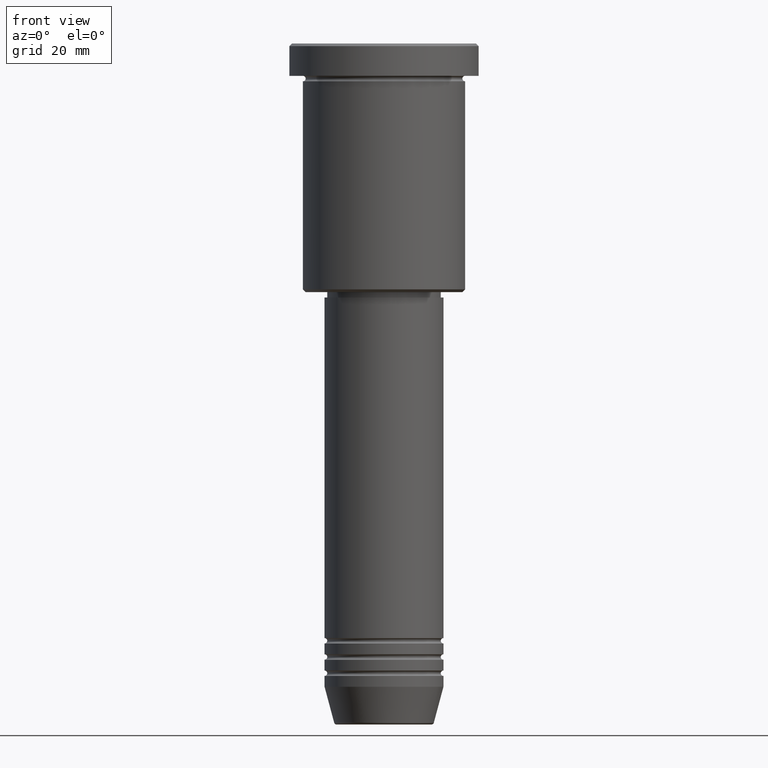
[diagram: clean part render]
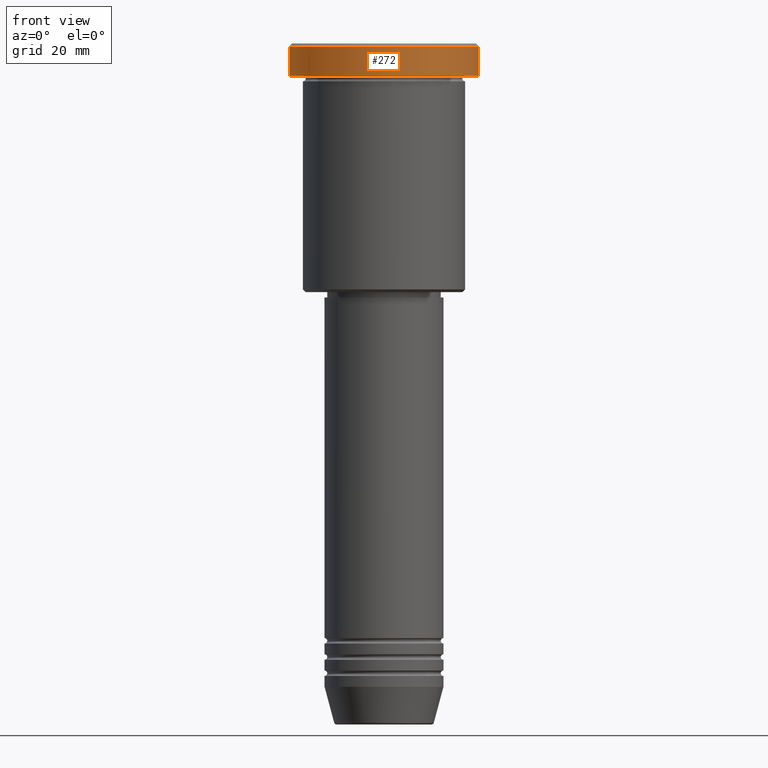
[diagram: same view with one face highlighted and labeled with its STEP entity id]
A machine part, front view. The second image highlights one B-rep face of the part: STEP entity #272.
In plain terms, the highlighted cylindrical surface (partial cylindrical patch) has radius 17.5 mm, axis along (-0, -0, 1).
Its self-contained STEP definition (entity closure, byte-faithful):
#66 = DIRECTION ( 'NONE',  ( 0.000000000000000000, 0.000000000000000000, -1.000000000000000000 ) ) ;
#82 = AXIS2_PLACEMENT_3D ( 'NONE', #518, #462, #467 ) ;
#116 = CARTESIAN_POINT ( 'NONE',  ( -17.50000000000000000, 2.143131898507868248E-15, -0.4999999999999864553 ) ) ;
#144 = ORIENTED_EDGE ( 'NONE', *, *, #997, .T. ) ;
#169 = ORIENTED_EDGE ( 'NONE', *, *, #241, .T. ) ;
#193 = DIRECTION ( 'NONE',  ( -0.000000000000000000, -0.000000000000000000, 1.000000000000000000 ) ) ;
#203 = FACE_OUTER_BOUND ( 'NONE', #649, .T. ) ;
#214 = CARTESIAN_POINT ( 'NONE',  ( -17.50000000000000000, 2.143131898507868248E-15, -5.999999999999995559 ) ) ;
#236 = CIRCLE ( 'NONE', #918, 17.50000000000000000 ) ;
#241 = EDGE_CURVE ( 'NONE', #502, #666, #244, .T. ) ;
#244 = LINE ( 'NONE', #731, #820 ) ;
#272 = ADVANCED_FACE ( 'NONE', ( #203 ), #577, .T. ) ;
#276 = AXIS2_PLACEMENT_3D ( 'NONE', #503, #313, #1126 ) ;
#313 = DIRECTION ( 'NONE',  ( -0.000000000000000000, -0.000000000000000000, 1.000000000000000000 ) ) ;
#316 = VERTEX_POINT ( 'NONE', #214 ) ;
#329 = CARTESIAN_POINT ( 'NONE',  ( 17.50000000000000000, 0.000000000000000000, -5.999999999999995559 ) ) ;
#359 = DIRECTION ( 'NONE',  ( -0.000000000000000000, -0.000000000000000000, 1.000000000000000000 ) ) ;
#391 = ORIENTED_EDGE ( 'NONE', *, *, #785, .F. ) ;
#408 = CARTESIAN_POINT ( 'NONE',  ( -17.50000000000000000, 2.143131898507868248E-15, 0.000000000000000000 ) ) ;
#462 = DIRECTION ( 'NONE',  ( -0.000000000000000000, -0.000000000000000000, 1.000000000000000000 ) ) ;
#467 = DIRECTION ( 'NONE',  ( 1.000000000000000000, 0.000000000000000000, 0.000000000000000000 ) ) ;
#502 = VERTEX_POINT ( 'NONE', #329 ) ;
#503 = CARTESIAN_POINT ( 'NONE',  ( 0.000000000000000000, 0.000000000000000000, 0.000000000000000000 ) ) ;
#518 = CARTESIAN_POINT ( 'NONE',  ( 0.000000000000000000, 0.000000000000000000, -5.999999999999995559 ) ) ;
#533 = CARTESIAN_POINT ( 'NONE',  ( 17.50000000000000000, 0.000000000000000000, -0.4999999999999864553 ) ) ;
#577 = CYLINDRICAL_SURFACE ( 'NONE', #276, 17.50000000000000000 ) ;
#609 = CIRCLE ( 'NONE', #82, 17.50000000000000000 ) ;
#618 = CARTESIAN_POINT ( 'NONE',  ( 0.000000000000000000, 0.000000000000000000, -0.4999999999999864553 ) ) ;
#649 = EDGE_LOOP ( 'NONE', ( #391, #144, #169, #809 ) ) ;
#666 = VERTEX_POINT ( 'NONE', #533 ) ;
#731 = CARTESIAN_POINT ( 'NONE',  ( 17.50000000000000000, 0.000000000000000000, 0.000000000000000000 ) ) ;
#781 = VERTEX_POINT ( 'NONE', #116 ) ;
#785 = EDGE_CURVE ( 'NONE', #316, #781, #862, .T. ) ;
#805 = VECTOR ( 'NONE', #193, 1000.000000000000000 ) ;
#809 = ORIENTED_EDGE ( 'NONE', *, *, #988, .T. ) ;
#820 = VECTOR ( 'NONE', #359, 1000.000000000000000 ) ;
#862 = LINE ( 'NONE', #408, #805 ) ;
#918 = AXIS2_PLACEMENT_3D ( 'NONE', #618, #66, #974 ) ;
#974 = DIRECTION ( 'NONE',  ( 1.000000000000000000, 0.000000000000000000, 0.000000000000000000 ) ) ;
#988 = EDGE_CURVE ( 'NONE', #666, #781, #236, .T. ) ;
#997 = EDGE_CURVE ( 'NONE', #316, #502, #609, .T. ) ;
#1126 = DIRECTION ( 'NONE',  ( 1.000000000000000000, 0.000000000000000000, 0.000000000000000000 ) ) ;